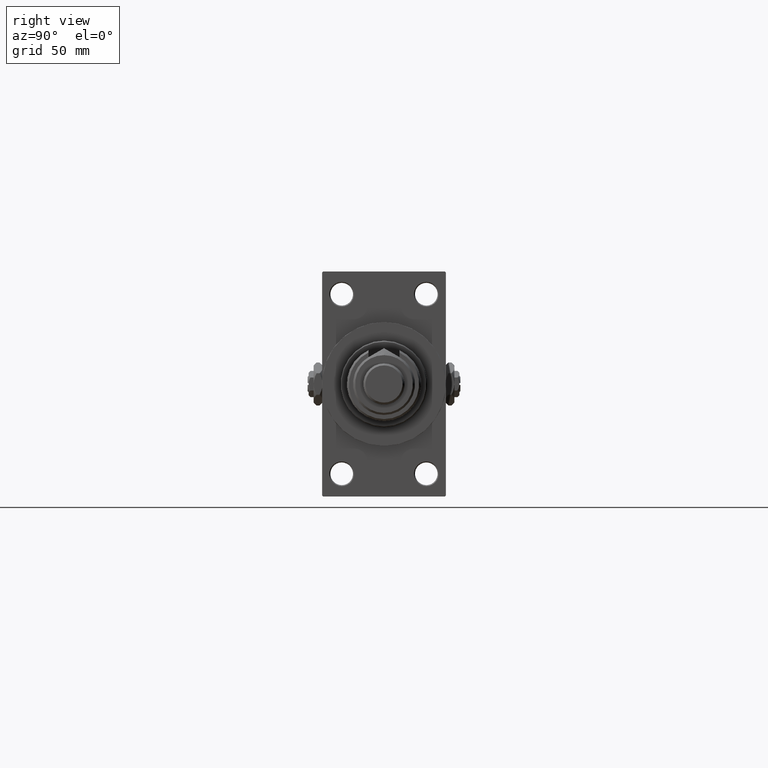
[diagram: clean part render]
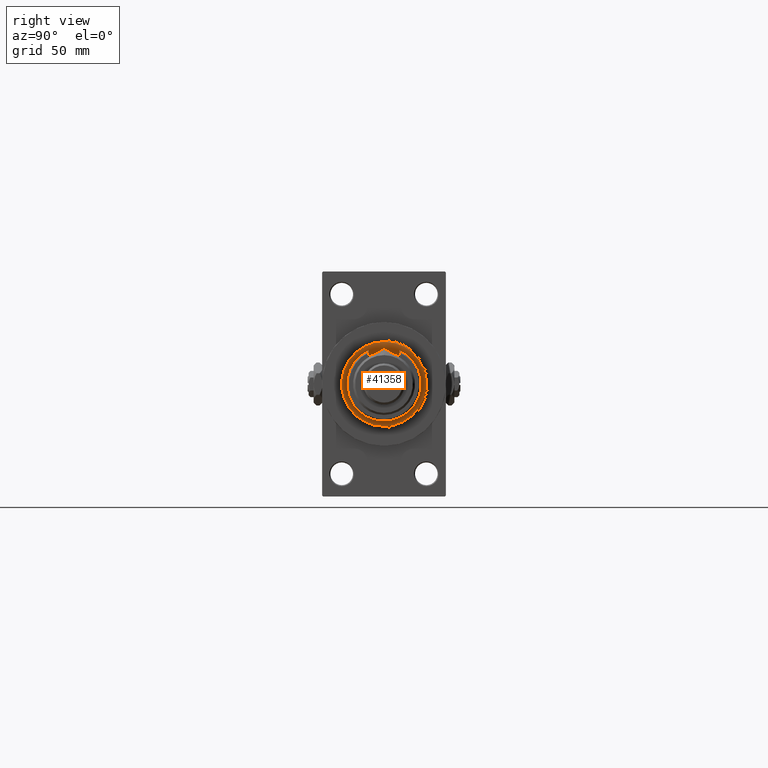
[diagram: same view with one face highlighted and labeled with its STEP entity id]
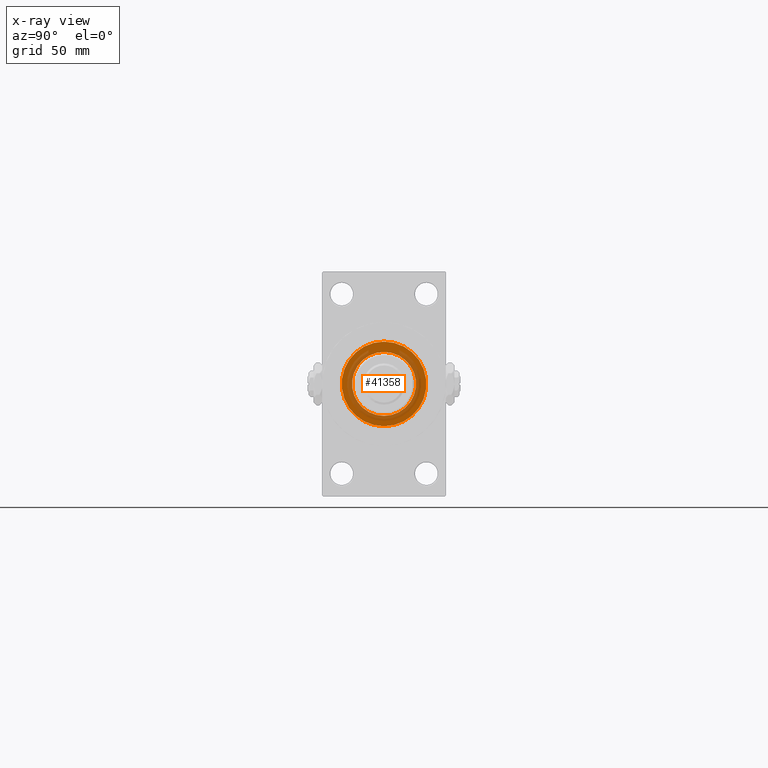
[diagram: x-ray of the same camera — body ghosted, the highlighted face saturated]
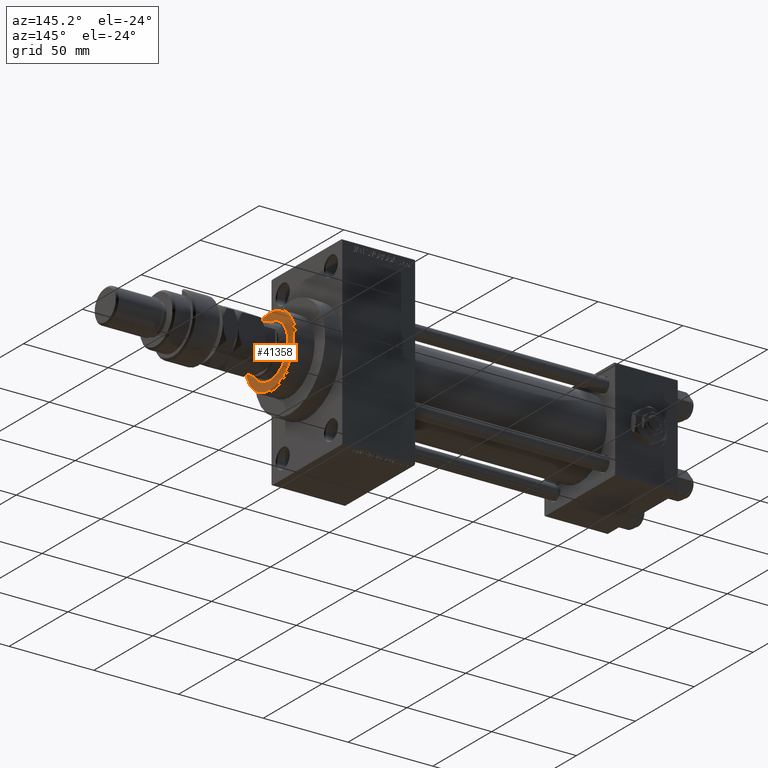
[diagram: same view with one face highlighted and labeled with its STEP entity id]
A machine part, right view. The second image highlights one B-rep face of the part: STEP entity #41358.
The next image is the same camera in x-ray: the body ghosted, the highlighted face saturated — about 40% of this face is hidden behind the body in this view.
A second angle (auxiliary view) of the same face is appended — the face is thin or edge-on in the first view.
In plain terms, the highlighted planar face has unit normal (1, -0, -0).
Its self-contained STEP definition (entity closure, byte-faithful):
#943 = VERTEX_POINT ( 'NONE', #5315 ) ;
#2330 = DIRECTION ( 'NONE',  ( 0.000000000000000000, 0.000000000000000000, 1.000000000000000000 ) ) ;
#3282 = ORIENTED_EDGE ( 'NONE', *, *, #49399, .T. ) ;
#5315 = CARTESIAN_POINT ( 'NONE',  ( -20.50000000000000355, 0.000000000000000000, 55.26000000000000512 ) ) ;
#5760 = CARTESIAN_POINT ( 'NONE',  ( 15.50000000000000000, 0.000000000000000000, 55.26000000000000512 ) ) ;
#6597 = ORIENTED_EDGE ( 'NONE', *, *, #16995, .T. ) ;
#7023 = DIRECTION ( 'NONE',  ( 0.000000000000000000, 0.000000000000000000, 1.000000000000000000 ) ) ;
#8973 = VERTEX_POINT ( 'NONE', #45275 ) ;
#12627 = CIRCLE ( 'NONE', #38428, 15.50000000000000000 ) ;
#12881 = DIRECTION ( 'NONE',  ( 1.000000000000000000, 0.000000000000000000, 0.000000000000000000 ) ) ;
#12883 = VERTEX_POINT ( 'NONE', #43837 ) ;
#13582 = AXIS2_PLACEMENT_3D ( 'NONE', #24346, #44411, #12881 ) ;
#13764 = EDGE_CURVE ( 'NONE', #34126, #12883, #12627, .T. ) ;
#15582 = DIRECTION ( 'NONE',  ( 1.000000000000000000, 0.000000000000000000, 0.000000000000000000 ) ) ;
#16347 = DIRECTION ( 'NONE',  ( 0.000000000000000000, 0.000000000000000000, 1.000000000000000000 ) ) ;
#16899 = PLANE ( 'NONE',  #18086 ) ;
#16995 = EDGE_CURVE ( 'NONE', #8973, #943, #42695, .T. ) ;
#18086 = AXIS2_PLACEMENT_3D ( 'NONE', #28613, #41127, #48687 ) ;
#18485 = CARTESIAN_POINT ( 'NONE',  ( 0.000000000000000000, 0.000000000000000000, 55.26000000000000512 ) ) ;
#18968 = AXIS2_PLACEMENT_3D ( 'NONE', #18485, #2330, #29971 ) ;
#23934 = CIRCLE ( 'NONE', #18968, 15.50000000000000000 ) ;
#24346 = CARTESIAN_POINT ( 'NONE',  ( 0.000000000000000000, 0.000000000000000000, 55.26000000000000512 ) ) ;
#24971 = FACE_OUTER_BOUND ( 'NONE', #35794, .T. ) ;
#28613 = CARTESIAN_POINT ( 'NONE',  ( 0.000000000000000000, 0.000000000000000000, 55.26000000000000512 ) ) ;
#28690 = EDGE_CURVE ( 'NONE', #12883, #34126, #23934, .T. ) ;
#29971 = DIRECTION ( 'NONE',  ( 1.000000000000000000, 0.000000000000000000, 0.000000000000000000 ) ) ;
#31732 = CARTESIAN_POINT ( 'NONE',  ( 0.000000000000000000, 0.000000000000000000, 55.26000000000000512 ) ) ;
#33616 = CARTESIAN_POINT ( 'NONE',  ( 0.000000000000000000, 0.000000000000000000, 55.26000000000000512 ) ) ;
#34126 = VERTEX_POINT ( 'NONE', #5760 ) ;
#35794 = EDGE_LOOP ( 'NONE', ( #3282, #6597 ) ) ;
#38395 = ORIENTED_EDGE ( 'NONE', *, *, #13764, .F. ) ;
#38428 = AXIS2_PLACEMENT_3D ( 'NONE', #31732, #16347, #15582 ) ;
#41127 = DIRECTION ( 'NONE',  ( 0.000000000000000000, 0.000000000000000000, 1.000000000000000000 ) ) ;
#41358 = ADVANCED_FACE ( 'NONE', ( #41391, #24971 ), #16899, .T. ) ;
#41391 = FACE_BOUND ( 'NONE', #42086, .T. ) ;
#42086 = EDGE_LOOP ( 'NONE', ( #38395, #43087 ) ) ;
#42695 = CIRCLE ( 'NONE', #13582, 20.50000000000000355 ) ;
#43087 = ORIENTED_EDGE ( 'NONE', *, *, #28690, .F. ) ;
#43837 = CARTESIAN_POINT ( 'NONE',  ( -15.50000000000000000, 1.898202538678397557E-15, 55.26000000000000512 ) ) ;
#44411 = DIRECTION ( 'NONE',  ( 0.000000000000000000, 0.000000000000000000, 1.000000000000000000 ) ) ;
#45275 = CARTESIAN_POINT ( 'NONE',  ( 20.50000000000000355, 2.541142108230758269E-15, 55.26000000000000512 ) ) ;
#46562 = AXIS2_PLACEMENT_3D ( 'NONE', #33616, #7023, #49524 ) ;
#48687 = DIRECTION ( 'NONE',  ( 1.000000000000000000, 0.000000000000000000, -0.000000000000000000 ) ) ;
#49399 = EDGE_CURVE ( 'NONE', #943, #8973, #49893, .T. ) ;
#49524 = DIRECTION ( 'NONE',  ( 1.000000000000000000, 0.000000000000000000, 0.000000000000000000 ) ) ;
#49893 = CIRCLE ( 'NONE', #46562, 20.50000000000000355 ) ;